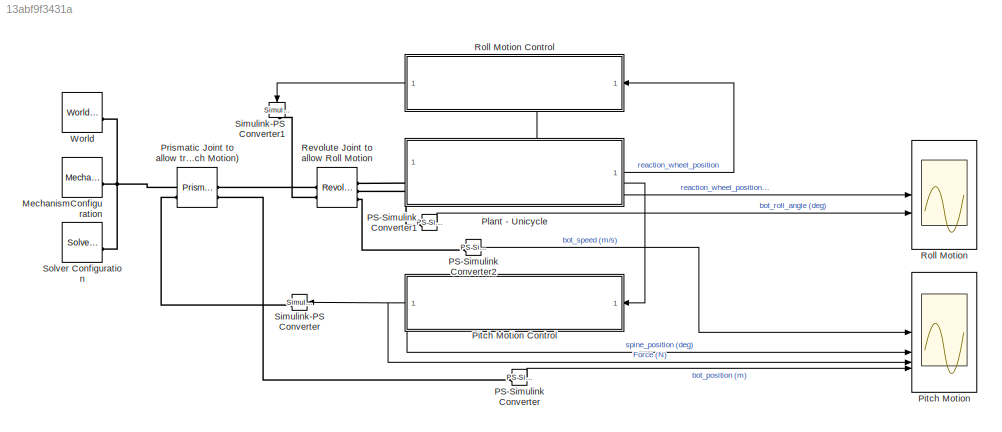
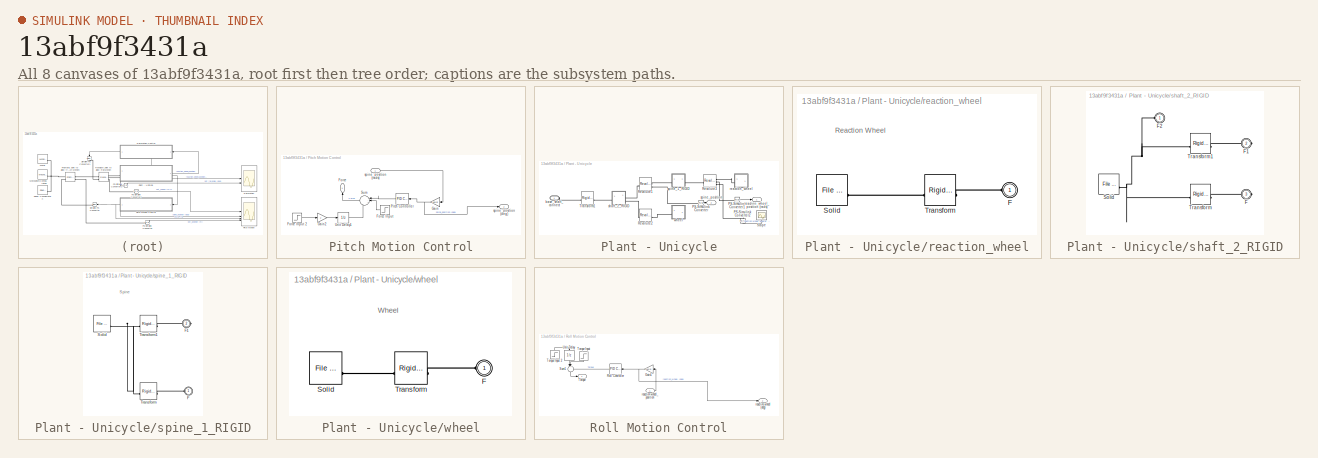
[diagram: thumbnail index - all 8 canvases of the model, root first then tree order]
MODEL slx_13abf9f3431a
KIND model
CONFIG AbsTol = auto
CONFIG EnableMultiTasking = off
CONFIG FixedStep = auto
CONFIG MaxStep = auto
CONFIG MinStep = auto
CONFIG RelTol = 1e-3
CONFIG SampleTimeConstraint = Unconstrained
CONFIG SolverName = VariableStepAuto
CONFIG StartTime = 0.0
CONFIG StopTime = 1
WORKSPACE source: external: MATLAB File  (data not in archive)
BLOCK [Reference] MechanismConfiguration  REF=sm_lib/Utilities/Mechanism
Configuration
  SourceBlock = sm_lib/Utilities/Mechanism\nConfiguration
  SourceType = Mechanism\nConfiguration
BLOCK [Reference] PS-Simulink Converter  REF=nesl_utility/PS-Simulink
Converter
  SourceBlock = nesl_utility/PS-Simulink\nConverter
  SourceType = PS-Simulink\nConverter
BLOCK [Reference] PS-Simulink Converter1  REF=nesl_utility/PS-Simulink
Converter
  SourceBlock = nesl_utility/PS-Simulink\nConverter
  SourceType = PS-Simulink\nConverter
BLOCK [Reference] PS-Simulink Converter2  REF=nesl_utility/PS-Simulink
Converter
  SourceBlock = nesl_utility/PS-Simulink\nConverter
  SourceType = PS-Simulink\nConverter
BLOCK [Scope] Pitch Motion
  Floating = off
  NumInputPorts = 4
  ScopeSpecificationString = Simulink.scopes.TimeScopeBlockCfg('CurrentConfiguration', extmgr.ConfigurationSet(extmgr.Configuration('Core','General UI',true),extmgr.Configuration('Core','Source UI',true),extmgr.Configuration('Sources','WiredSimulink',true),extmgr.Configuration('Visuals','Time Domain',true,'SerializedDisplays',{struct('MinYLimReal','-4.07625','MaxYLimReal','6.24798','YLabelReal','','MinYLimMag','0.00000','MaxY...<+1569ch>
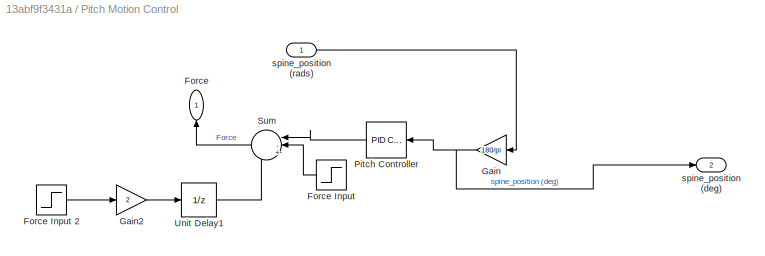
BLOCK [SubSystem] Pitch Motion Control
  NameLocation = top
  PortSchema = {"entries":[{"content":{"sides":[{"content":{"connectorIds":["In1","Out2"]},"type":"ConnectorPlacement.EquallySpacedRectSide","uuid":"d73f42eb-ae7f-4faf-9b59-065b2713d795"},{"content":{"connectorIds":["Out1"],"side":"RIGHT"},"type":"ConnectorPlacement.EquallySpacedRectSide","uuid":"e146c594-0342-4776-8c61-a489a9effe32"},{"content":{"connectorIds":[],"side":"TOP"},"type":"ConnectorPlacement.Equally...<+247ch>
BLOCK [Outport] Pitch Motion Control/Force
  NameLocation = right
BLOCK [Step] Pitch Motion Control/Force Input
  After = 0.2
  NameLocation = top
  SampleTime = 0
  Time = 0.001
BLOCK [Step] Pitch Motion Control/Force Input 2
  After = -2
  SampleTime = 0
  Time = 0.01
BLOCK [Gain] Pitch Motion Control/Gain
  Gain = 180/pi
  NameLocation = top
BLOCK [Gain] Pitch Motion Control/Gain2
  Gain = 2
BLOCK [Reference] Pitch Motion Control/Pitch Controller  REF=slpidlib/PID Controller
  LibrarySourceBlock = simulink/Continuous/PID Controller
  SourceBlock = slpidlib/PID Controller
  SourceType = PID 1dof
BLOCK [Sum] Pitch Motion Control/Sum
  Inputs = |-++
  NameLocation = top
BLOCK [UnitDelay] Pitch Motion Control/Unit Delay1
  HasFrameUpgradeWarning = on
  SampleTime = -1
BLOCK [Outport] Pitch Motion Control/spine_position (deg)
  Port = 2
BLOCK [Inport] Pitch Motion Control/spine_position (rads)
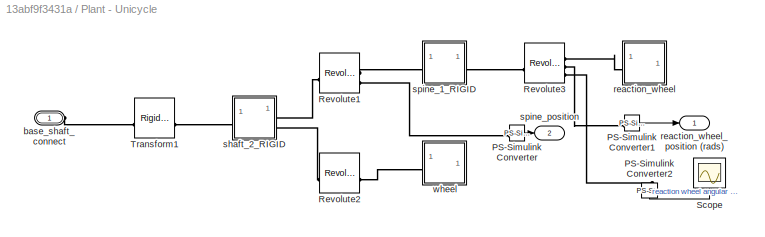
BLOCK [SubSystem] Plant - Unicycle
  NameLocation = top
BLOCK [Reference] Plant - Unicycle/PS-Simulink Converter  REF=nesl_utility/PS-Simulink
Converter
  SourceBlock = nesl_utility/PS-Simulink\nConverter
  SourceType = PS-Simulink\nConverter
BLOCK [Reference] Plant - Unicycle/PS-Simulink Converter1  REF=nesl_utility/PS-Simulink
Converter
  SourceBlock = nesl_utility/PS-Simulink\nConverter
  SourceType = PS-Simulink\nConverter
BLOCK [Reference] Plant - Unicycle/PS-Simulink Converter2  REF=nesl_utility/PS-Simulink
Converter
  NameLocation = left
  SourceBlock = nesl_utility/PS-Simulink\nConverter
  SourceType = PS-Simulink\nConverter
BLOCK [Reference] Plant - Unicycle/Revolute1  REF=sm_lib/Joints/Revolute Joint
  SourceBlock = sm_lib/Joints/Revolute Joint
  SourceType = Revolute Joint
BLOCK [Reference] Plant - Unicycle/Revolute2  REF=sm_lib/Joints/Revolute Joint
  SourceBlock = sm_lib/Joints/Revolute Joint
  SourceType = Revolute Joint
BLOCK [Reference] Plant - Unicycle/Revolute3  REF=sm_lib/Joints/Revolute Joint
  SourceBlock = sm_lib/Joints/Revolute Joint
  SourceType = Revolute Joint
BLOCK [Scope] Plant - Unicycle/Scope
  Floating = off
  NameLocation = right
  NumInputPorts = 1
  ScopeSpecificationString = Simulink.scopes.TimeScopeBlockCfg('CurrentConfiguration', extmgr.ConfigurationSet(extmgr.Configuration('Core','General UI',true),extmgr.Configuration('Core','Source UI',true),extmgr.Configuration('Sources','WiredSimulink',true,'DataLoggingVariableName','ScopeData1'),extmgr.Configuration('Visuals','Time Domain',true,'SerializedDisplays',{struct('MinYLimReal','-0.74138','MaxYLimReal','0.13881','YLab...<+1497ch>
BLOCK [Reference] Plant - Unicycle/Transform1  REF=sm_lib/Frames and
Transforms/Rigid
Transform
  SourceBlock = sm_lib/Frames and\nTransforms/Rigid\nTransform
  SourceType = Rigid\nTransform
BLOCK [PMIOPort] Plant - Unicycle/base_shaft_connect
  Side = Left
BLOCK [SubSystem] Plant - Unicycle/reaction_wheel
BLOCK [PMIOPort] Plant - Unicycle/reaction_wheel/F
  Side = Left
BLOCK [Reference] Plant - Unicycle/reaction_wheel/Solid  REF=sm_lib/Body Elements/File Solid
  SourceBlock = sm_lib/Body Elements/File Solid
  SourceType = File Solid
BLOCK [Reference] Plant - Unicycle/reaction_wheel/Transform  REF=sm_lib/Frames and
Transforms/Rigid
Transform
  SourceBlock = sm_lib/Frames and\nTransforms/Rigid\nTransform
  SourceType = Rigid\nTransform
BLOCK [Outport] Plant - Unicycle/reaction_wheel_position (rads)
BLOCK [SubSystem] Plant - Unicycle/shaft_2_RIGID
BLOCK [PMIOPort] Plant - Unicycle/shaft_2_RIGID/F
  Port = 3
  Side = Right
BLOCK [PMIOPort] Plant - Unicycle/shaft_2_RIGID/F1
  Port = 2
  Side = Right
BLOCK [PMIOPort] Plant - Unicycle/shaft_2_RIGID/F2
  Side = Left
BLOCK [Reference] Plant - Unicycle/shaft_2_RIGID/Solid  REF=sm_lib/Body Elements/File Solid
  SourceBlock = sm_lib/Body Elements/File Solid
  SourceType = File Solid
BLOCK [Reference] Plant - Unicycle/shaft_2_RIGID/Transform  REF=sm_lib/Frames and
Transforms/Rigid
Transform
  SourceBlock = sm_lib/Frames and\nTransforms/Rigid\nTransform
  SourceType = Rigid\nTransform
BLOCK [Reference] Plant - Unicycle/shaft_2_RIGID/Transform1  REF=sm_lib/Frames and
Transforms/Rigid
Transform
  SourceBlock = sm_lib/Frames and\nTransforms/Rigid\nTransform
  SourceType = Rigid\nTransform
BLOCK [SubSystem] Plant - Unicycle/spine_1_RIGID
BLOCK [PMIOPort] Plant - Unicycle/spine_1_RIGID/F
  Side = Left
BLOCK [PMIOPort] Plant - Unicycle/spine_1_RIGID/F1
  Port = 2
  Side = Right
BLOCK [Reference] Plant - Unicycle/spine_1_RIGID/Solid  REF=sm_lib/Body Elements/File Solid
  SourceBlock = sm_lib/Body Elements/File Solid
  SourceType = File Solid
BLOCK [Reference] Plant - Unicycle/spine_1_RIGID/Transform  REF=sm_lib/Frames and
Transforms/Rigid
Transform
  SourceBlock = sm_lib/Frames and\nTransforms/Rigid\nTransform
  SourceType = Rigid\nTransform
BLOCK [Reference] Plant - Unicycle/spine_1_RIGID/Transform1  REF=sm_lib/Frames and
Transforms/Rigid
Transform
  SourceBlock = sm_lib/Frames and\nTransforms/Rigid\nTransform
  SourceType = Rigid\nTransform
BLOCK [Outport] Plant - Unicycle/spine_position
  Port = 2
BLOCK [SubSystem] Plant - Unicycle/wheel
BLOCK [PMIOPort] Plant - Unicycle/wheel/F
  Side = Left
BLOCK [Reference] Plant - Unicycle/wheel/Solid  REF=sm_lib/Body Elements/File Solid
  SourceBlock = sm_lib/Body Elements/File Solid
  SourceType = File Solid
BLOCK [Reference] Plant - Unicycle/wheel/Transform  REF=sm_lib/Frames and
Transforms/Rigid
Transform
  SourceBlock = sm_lib/Frames and\nTransforms/Rigid\nTransform
  SourceType = Rigid\nTransform
BLOCK [Reference] Prismatic Joint to allow translation (Pitch Motion)  REF=sm_lib/Joints/Prismatic
Joint
  NameLocation = top
  SourceBlock = sm_lib/Joints/Prismatic\nJoint
  SourceType = Prismatic\nJoint
BLOCK [Reference] Revolute Joint to allow Roll Motion  REF=sm_lib/Joints/Revolute Joint
  NameLocation = top
  SourceBlock = sm_lib/Joints/Revolute Joint
  SourceType = Revolute Joint
BLOCK [Scope] Roll Motion
  Floating = off
  NumInputPorts = 2
  ScopeSpecificationString = Simulink.scopes.TimeScopeBlockCfg('CurrentConfiguration', extmgr.ConfigurationSet(extmgr.Configuration('Core','General UI',true),extmgr.Configuration('Core','Source UI',true),extmgr.Configuration('Sources','WiredSimulink',true,'DataLoggingVariableName','ScopeData1'),extmgr.Configuration('Visuals','Time Domain',true,'SerializedDisplays',{struct('MinYLimReal','-0.3091','MaxYLimReal','0.32482','YLabe...<+1452ch>
BLOCK [SubSystem] Roll Motion Control
  NameLocation = top
  PortSchema = {"entries":[{"content":{"sides":[{"content":{"connectorIds":["Out2","In1"]},"type":"ConnectorPlacement.EquallySpacedRectSide","uuid":"d73f42eb-ae7f-4faf-9b59-065b2713d795"},{"content":{"connectorIds":["Out1"],"side":"RIGHT"},"type":"ConnectorPlacement.EquallySpacedRectSide","uuid":"e146c594-0342-4776-8c61-a489a9effe32"},{"content":{"connectorIds":[],"side":"TOP"},"type":"ConnectorPlacement.Equally...<+247ch>
BLOCK [Gain] Roll Motion Control/Gain1
  Gain = 180/pi
  NameLocation = top
BLOCK [Reference] Roll Motion Control/Roll Controller  REF=slpidlib/PID Controller
  LibrarySourceBlock = simulink/Continuous/PID Controller
  NameLocation = top
  SourceBlock = slpidlib/PID Controller
  SourceType = PID 1dof
BLOCK [Sum] Roll Motion Control/Sum1
  Inputs = |++-
  NameLocation = left
BLOCK [Outport] Roll Motion Control/Torque
BLOCK [Step] Roll Motion Control/Torque Input
  After = 5
  NameLocation = top
  SampleTime = 0
  Time = 0.01
BLOCK [Step] Roll Motion Control/Torque Input 2
  After = -2
  NameLocation = left
  SampleTime = 0
  Time = 0.01
BLOCK [UnitDelay] Roll Motion Control/Unit Delay
  HasFrameUpgradeWarning = on
  NameLocation = left
  SampleTime = -1
BLOCK [Outport] Roll Motion Control/reaction_wheel (deg)
  Port = 2
BLOCK [Inport] Roll Motion Control/reaction_wheel_position
BLOCK [Reference] Simulink-PS Converter  REF=nesl_utility/Simulink-PS
Converter
  NameLocation = top
  SourceBlock = nesl_utility/Simulink-PS\nConverter
  SourceType = Simulink-PS\nConverter
BLOCK [Reference] Simulink-PS Converter1  REF=nesl_utility/Simulink-PS
Converter
  NameLocation = left
  SourceBlock = nesl_utility/Simulink-PS\nConverter
  SourceType = Simulink-PS\nConverter
BLOCK [Reference] Solver Configuration  REF=nesl_utility/Solver
Configuration
  SourceBlock = nesl_utility/Solver\nConfiguration
  SourceType = Solver\nConfiguration
BLOCK [Reference] World  REF=sm_lib/Frames and
Transforms/World Frame
  SourceBlock = sm_lib/Frames and\nTransforms/World Frame
  SourceType = World Frame
ANNOTATION Plant - Unicycle/reaction_wheel: Reaction Wheel
ANNOTATION Plant - Unicycle/spine_1_RIGID: Spine
ANNOTATION Plant - Unicycle/wheel: Wheel
LINE PS-Simulink Converter1:1 -> Roll Motion:2
LINE PS-Simulink Converter2:1 -> Pitch Motion:1
LINE PS-Simulink Converter:1 -> Pitch Motion:4
LINE Pitch Motion Control/Force Input 2:1 -> Pitch Motion Control/Gain2:1
LINE Pitch Motion Control/Force Input:1 -> Pitch Motion Control/Sum:2
LINE Pitch Motion Control/Gain2:1 -> Pitch Motion Control/Unit Delay1:1
NET Pitch Motion Control/Gain:1 -> Pitch Motion Control/Pitch Controller:1, Pitch Motion Control/spine_position (deg):1
LINE Pitch Motion Control/Pitch Controller:1 -> Pitch Motion Control/Sum:1
LINE Pitch Motion Control/Sum:1 -> Pitch Motion Control/Force:1
LINE Pitch Motion Control/Unit Delay1:1 -> Pitch Motion Control/Sum:3
LINE Pitch Motion Control/spine_position (rads):1 -> Pitch Motion Control/Gain:1
NET Pitch Motion Control:1 -> Pitch Motion:3, Simulink-PS Converter:1
LINE Pitch Motion Control:2 -> Pitch Motion:2
LINE Plant - Unicycle/PS-Simulink Converter1:1 -> Plant - Unicycle/reaction_wheel_position (rads):1
LINE Plant - Unicycle/PS-Simulink Converter2:1 -> Plant - Unicycle/Scope:1
LINE Plant - Unicycle/PS-Simulink Converter:1 -> Plant - Unicycle/spine_position:1
LINE Plant - Unicycle:1 -> Roll Motion Control:1
LINE Plant - Unicycle:2 -> Pitch Motion Control:1
NET Roll Motion Control/Gain1:1 -> Roll Motion Control/Roll Controller:1, Roll Motion Control/reaction_wheel (deg):1
LINE Roll Motion Control/Roll Controller:1 -> Roll Motion Control/Sum1:3
LINE Roll Motion Control/Sum1:1 -> Roll Motion Control/Torque:1
LINE Roll Motion Control/Torque Input 2:1 -> Roll Motion Control/Unit Delay:1
LINE Roll Motion Control/Torque Input:1 -> Roll Motion Control/Sum1:2
LINE Roll Motion Control/Unit Delay:1 -> Roll Motion Control/Sum1:1
LINE Roll Motion Control/reaction_wheel_position:1 -> Roll Motion Control/Gain1:1
LINE Roll Motion Control:1 -> Simulink-PS Converter1:1
LINE Roll Motion Control:2 -> Roll Motion:1
PNET net1: MechanismConfiguration:RConn1 -- Prismatic Joint to allow translation (Pitch Motion):LConn1 -- Solver Configuration:RConn1 -- World:RConn1
PLINE PS-Simulink Converter1:LConn1 -- Revolute Joint to allow Roll Motion:RConn2
PLINE PS-Simulink Converter2:LConn1 -- Revolute Joint to allow Roll Motion:RConn3
PLINE PS-Simulink Converter:LConn1 -- Prismatic Joint to allow translation (Pitch Motion):RConn2
PLINE Plant - Unicycle/PS-Simulink Converter1:LConn1 -- Plant - Unicycle/Revolute3:RConn2
PLINE Plant - Unicycle/PS-Simulink Converter2:LConn1 -- Plant - Unicycle/Revolute3:RConn3
PLINE Plant - Unicycle/PS-Simulink Converter:LConn1 -- Plant - Unicycle/Revolute1:RConn2
PLINE Plant - Unicycle/Revolute1:LConn1 -- Plant - Unicycle/shaft_2_RIGID:RConn1
PLINE Plant - Unicycle/Revolute1:RConn1 -- Plant - Unicycle/spine_1_RIGID:LConn1
PLINE Plant - Unicycle/Revolute2:LConn1 -- Plant - Unicycle/shaft_2_RIGID:RConn2
PLINE Plant - Unicycle/Revolute2:RConn1 -- Plant - Unicycle/wheel:LConn1
PLINE Plant - Unicycle/Revolute3:LConn1 -- Plant - Unicycle/spine_1_RIGID:RConn1
PLINE Plant - Unicycle/Revolute3:RConn1 -- Plant - Unicycle/reaction_wheel:LConn1
PLINE Plant - Unicycle/Transform1:LConn1 -- Plant - Unicycle/base_shaft_connect:RConn1
PLINE Plant - Unicycle/Transform1:RConn1 -- Plant - Unicycle/shaft_2_RIGID:LConn1
PLINE Plant - Unicycle/reaction_wheel/F:RConn1 -- Plant - Unicycle/reaction_wheel/Transform:RConn1
PLINE Plant - Unicycle/reaction_wheel/Solid:RConn1 -- Plant - Unicycle/reaction_wheel/Transform:LConn1
PLINE Plant - Unicycle/shaft_2_RIGID/F1:RConn1 -- Plant - Unicycle/shaft_2_RIGID/Transform1:RConn1
PNET net2: Plant - Unicycle/shaft_2_RIGID/F2:RConn1 -- Plant - Unicycle/shaft_2_RIGID/Solid:RConn1 -- Plant - Unicycle/shaft_2_RIGID/Transform1:LConn1 -- Plant - Unicycle/shaft_2_RIGID/Transform:LConn1
PLINE Plant - Unicycle/shaft_2_RIGID/F:RConn1 -- Plant - Unicycle/shaft_2_RIGID/Transform:RConn1
PLINE Plant - Unicycle/spine_1_RIGID/F1:RConn1 -- Plant - Unicycle/spine_1_RIGID/Transform1:RConn1
PLINE Plant - Unicycle/spine_1_RIGID/F:RConn1 -- Plant - Unicycle/spine_1_RIGID/Transform:RConn1
PNET net3: Plant - Unicycle/spine_1_RIGID/Solid:RConn1 -- Plant - Unicycle/spine_1_RIGID/Transform1:LConn1 -- Plant - Unicycle/spine_1_RIGID/Transform:LConn1
PLINE Plant - Unicycle/wheel/F:RConn1 -- Plant - Unicycle/wheel/Transform:RConn1
PLINE Plant - Unicycle/wheel/Solid:RConn1 -- Plant - Unicycle/wheel/Transform:LConn1
PLINE Plant - Unicycle:LConn1 -- Revolute Joint to allow Roll Motion:RConn1
PLINE Prismatic Joint to allow translation (Pitch Motion):LConn2 -- Simulink-PS Converter:RConn1
PLINE Prismatic Joint to allow translation (Pitch Motion):RConn1 -- Revolute Joint to allow Roll Motion:LConn1
PLINE Revolute Joint to allow Roll Motion:LConn2 -- Simulink-PS Converter1:RConn1
note: NET lines group one-source signal fan-out (src -> all destinations, sorted); 1:1 wires keep LINE; PNET lines group multi-terminal physical nets as a canonical sorted terminal list (undirected conserving connections); 2-terminal nets keep the pairwise PLINE form
